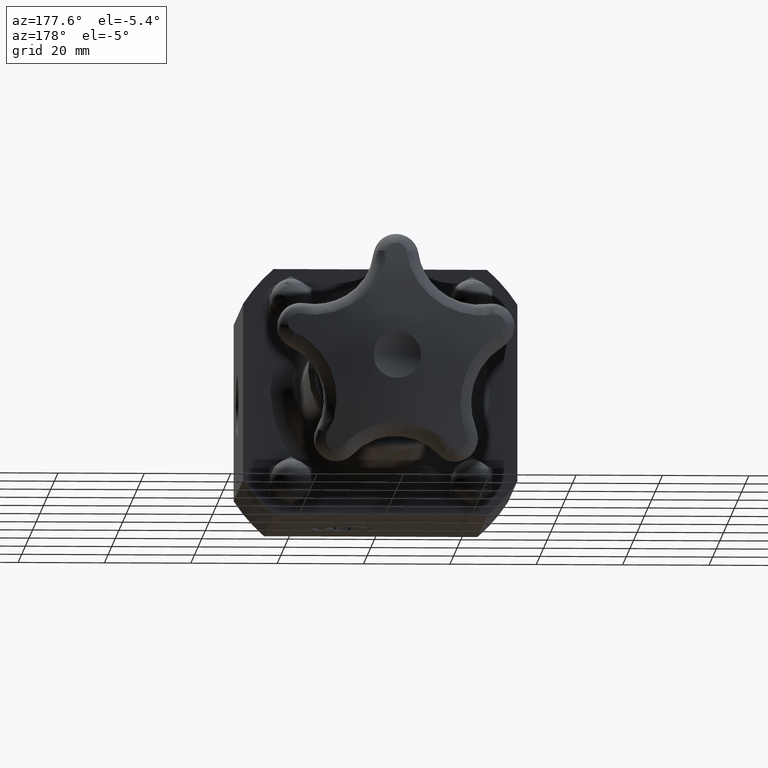
[diagram: clean part render]
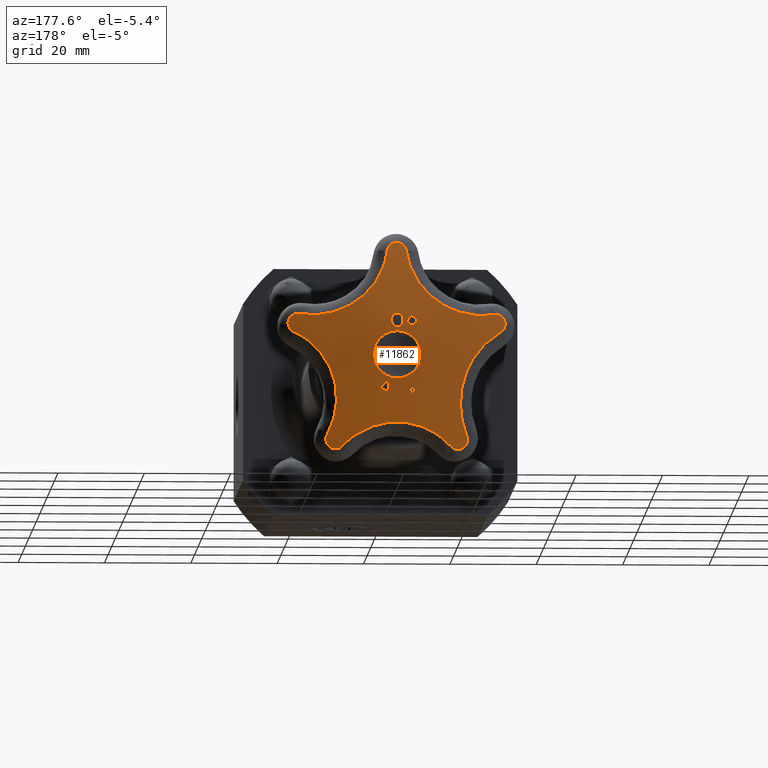
[diagram: same view with one face highlighted and labeled with its STEP entity id]
A machine part, auxiliary view. The second image highlights one B-rep face of the part: STEP entity #11862.
In plain terms, the highlighted spherical surface has radius 101.6 mm.
Its self-contained STEP definition (entity closure, byte-faithful):
#8673=CARTESIAN_POINT('',(0.085862900185211,5.742578033837450,-0.334336098257462));
#8674=VERTEX_POINT('',#8673);
#8681=CARTESIAN_POINT('',(0.080862571524474,5.740070388788942,-0.364135061299996));
#8682=VERTEX_POINT('',#8681);
#8683=CARTESIAN_POINT('',(0.138077283113868,1.757500000000000,-0.023169658459773));
#8684=DIRECTION('',(0.986211736099962,-3.347682E-034,-0.165488403154721));
#8685=DIRECTION('',(0.165488403154721,1.995018E-033,0.986211736099962));
#8686=AXIS2_PLACEMENT_3D('',#8683,#8684,#8685);
#8687=CIRCLE('',#8686,3.997548977913186);
#8688=EDGE_CURVE('',#8682,#8674,#8687,.T.);
#8706=CARTESIAN_POINT('',(0.066931145986275,5.740560100352850,-0.361597094393902));
#8707=VERTEX_POINT('',#8706);
#8708=CARTESIAN_POINT('',(-0.061608234058828,1.757500000000000,-0.338180345563003));
#8709=DIRECTION('',(-0.179225881333302,0.0,-0.983807950496590));
#8710=DIRECTION('',(0.0,-1.0,0.0));
#8711=AXIS2_PLACEMENT_3D('',#8708,#8709,#8710);
#8712=CIRCLE('',#8711,3.985202438944732);
#8713=EDGE_CURVE('',#8707,#8682,#8712,.T.);
#8731=CARTESIAN_POINT('',(0.086359266902230,5.749345606544358,-0.240230577846813));
#8732=VERTEX_POINT('',#8731);
#8733=CARTESIAN_POINT('',(0.121696449326066,1.757500000000000,-0.019480935927100));
#8734=DIRECTION('',(-0.987428598717144,3.197527E-034,0.158065690254078));
#8735=DIRECTION('',(-0.158065690254078,-1.997479E-033,-0.987428598717144));
#8736=AXIS2_PLACEMENT_3D('',#8733,#8734,#8735);
#8737=CIRCLE('',#8736,3.998100857576862);
#8738=EDGE_CURVE('',#8732,#8707,#8737,.T.);
#8756=CARTESIAN_POINT('',(0.178491128782159,5.740560100243762,-0.321516958794137));
#8757=VERTEX_POINT('',#8756);
#8758=CARTESIAN_POINT('',(-0.081379549747352,1.757500000000000,-0.092237461550079));
#8759=DIRECTION('',(0.661592173204071,0.0,0.749863851879202));
#8760=DIRECTION('',(0.0,1.0,0.0));
#8761=AXIS2_PLACEMENT_3D('',#8758,#8759,#8760);
#8762=CIRCLE('',#8761,3.998108255108873);
#8763=EDGE_CURVE('',#8757,#8732,#8762,.T.);
#8799=CARTESIAN_POINT('',(0.169360113250167,5.740070388702393,-0.332340564889026));
#8800=VERTEX_POINT('',#8799);
#8801=CARTESIAN_POINT('',(0.262739148876333,1.757500000000000,-0.221652121134103));
#8802=DIRECTION('',(0.764340282334966,0.0,-0.644813099122609));
#8803=DIRECTION('',(0.0,-1.0,0.0));
#8804=AXIS2_PLACEMENT_3D('',#8801,#8802,#8803);
#8805=CIRCLE('',#8804,3.985202438627741);
#8806=EDGE_CURVE('',#8800,#8757,#8805,.T.);
#8824=CARTESIAN_POINT('',(0.146539084429404,5.742578033778149,-0.312536976105990));
#8825=VERTEX_POINT('',#8824);
#8826=CARTESIAN_POINT('',(-0.091762441742962,1.757500000000000,-0.105744133077216));
#8827=DIRECTION('',(-0.655409775395539,0.0,-0.755273477831686));
#8828=DIRECTION('',(0.0,-1.0,0.0));
#8829=AXIS2_PLACEMENT_3D('',#8826,#8827,#8828);
#8830=CIRCLE('',#8829,3.997548978137118);
#8831=EDGE_CURVE('',#8825,#8800,#8830,.T.);
#8849=CARTESIAN_POINT('',(0.116200988857743,1.757500000000000,-0.323436538421051));
#8850=DIRECTION('',(0.338111065893150,0.0,-0.941106214579735));
#8851=DIRECTION('',(0.0,-1.0,0.0));
#8852=AXIS2_PLACEMENT_3D('',#8849,#8850,#8851);
#8853=CIRCLE('',#8852,3.985208418113498);
#8854=EDGE_CURVE('',#8674,#8825,#8853,.T.);
#8884=CARTESIAN_POINT('',(0.037834369669133,5.748204436490727,0.269901206082853));
#8885=VERTEX_POINT('',#8884);
#8892=CARTESIAN_POINT('',(-0.000813251585510,5.749463335806678,0.253432563411026));
#8893=VERTEX_POINT('',#8892);
#8894=CARTESIAN_POINT('',(-0.000813251585510,5.749463335806678,0.253432563411025));
#8895=CARTESIAN_POINT('',(0.004822604549693,5.749463267161417,0.253451729844247));
#8896=CARTESIAN_POINT('',(0.010434056143418,5.749408968571550,0.254137147028971));
#8897=CARTESIAN_POINT('',(0.019829419967588,5.749191776701514,0.256945437338925));
#8898=CARTESIAN_POINT('',(0.023603879105451,5.749063271092424,0.258616838560289));
#8899=CARTESIAN_POINT('',(0.031162797321007,5.748707503911848,0.263275608997046));
#8900=CARTESIAN_POINT('',(0.034718544485056,5.748475224151670,0.266334166676061));
#8901=CARTESIAN_POINT('',(0.037834369669133,5.748204436490726,0.269901206082853));
#8902=B_SPLINE_CURVE_WITH_KNOTS('',3,(#8894,#8895,#8896,#8897,#8898,#8899,#8900,#8901),.UNSPECIFIED.,.F.,.U.,(4,2,2,4),(0.0,0.042945472093289,0.074729953679080,0.111130521126663),.UNSPECIFIED.);
#8903=EDGE_CURVE('',#8893,#8885,#8902,.T.);
#8936=CARTESIAN_POINT('',(0.051972176469609,5.744648590963244,0.316140801626154));
#8937=VERTEX_POINT('',#8936);
#8944=CARTESIAN_POINT('',(0.037834369669133,5.748204436490726,0.269901206082853));
#8945=CARTESIAN_POINT('',(0.041442739555291,5.747886429832899,0.274097371770597));
#8946=CARTESIAN_POINT('',(0.044216393332117,5.747526143654533,0.278867364485766));
#8947=CARTESIAN_POINT('',(0.051175872144373,5.746247534047898,0.295695352673443));
#8948=CARTESIAN_POINT('',(0.052000310715352,5.745304176149834,0.307867975918427));
#8949=CARTESIAN_POINT('',(0.051972176469609,5.744648590963244,0.316140801626154));
#8950=B_SPLINE_CURVE_WITH_KNOTS('',3,(#8944,#8945,#8946,#8947,#8948,#8949),.UNSPECIFIED.,.F.,.U.,(4,2,4),(0.0,0.042240697270331,0.139117363804144),.UNSPECIFIED.);
#8951=EDGE_CURVE('',#8885,#8937,#8950,.T.);
#8977=CARTESIAN_POINT('',(0.037422621985947,5.740875481075145,0.362380082417699));
#8978=VERTEX_POINT('',#8977);
#8985=CARTESIAN_POINT('',(0.051972176469609,5.744648590963244,0.316140801626154));
#8986=CARTESIAN_POINT('',(0.051955724861657,5.744265235014527,0.320978368143261));
#8987=CARTESIAN_POINT('',(0.051649887753166,5.743873160763518,0.325860197870603));
#8988=CARTESIAN_POINT('',(0.050134657362983,5.743046460787355,0.336059631335726));
#8989=CARTESIAN_POINT('',(0.048942330808374,5.742679768741240,0.340537076610657));
#8990=CARTESIAN_POINT('',(0.045132529339031,5.741814489793273,0.351068251626343));
#8991=CARTESIAN_POINT('',(0.041865078415884,5.741314249290123,0.357098260899483));
#8992=CARTESIAN_POINT('',(0.037422621985947,5.740875481075144,0.362380082417699));
#8993=B_SPLINE_CURVE_WITH_KNOTS('',3,(#8985,#8986,#8987,#8988,#8989,#8990,#8991,#8992),.UNSPECIFIED.,.F.,.U.,(4,2,2,4),(0.0,0.036978033263811,0.078812994269673,0.145814753845857),.UNSPECIFIED.);
#8994=EDGE_CURVE('',#8937,#8978,#8993,.T.);
#9022=CARTESIAN_POINT('',(-0.001238542349022,5.739552846207736,0.378488567887762));
#9023=VERTEX_POINT('',#9022);
#9030=CARTESIAN_POINT('',(0.037422621985947,5.740875481075145,0.362380082417699));
#9031=CARTESIAN_POINT('',(0.034954443929450,5.740644692501276,0.365171856276013));
#9032=CARTESIAN_POINT('',(0.032197988751061,5.740440415363389,0.367645041378231));
#9033=CARTESIAN_POINT('',(0.025433171661516,5.740054380883790,0.372335971569167));
#9034=CARTESIAN_POINT('',(0.021382576080450,5.739892027163673,0.374321631798851));
#9035=CARTESIAN_POINT('',(0.014161922593872,5.739697132621298,0.376716303028090));
#9036=CARTESIAN_POINT('',(0.011126297743766,5.739640822220748,0.377412789087582));
#9037=CARTESIAN_POINT('',(0.004967186895549,5.739568654773591,0.378304358121797));
#9038=CARTESIAN_POINT('',(0.001864839243269,5.739552808314178,0.378499121875412));
#9039=CARTESIAN_POINT('',(-0.001238542349022,5.739552846207735,0.378488567887762));
#9040=B_SPLINE_CURVE_WITH_KNOTS('',3,(#9030,#9031,#9032,#9033,#9034,#9035,#9036,#9037,#9038,#9039),.UNSPECIFIED.,.F.,.U.,(4,2,2,2,4),(0.0,0.028449418287417,0.062797366334246,0.086669104210055,0.110412733579470),.UNSPECIFIED.);
#9041=EDGE_CURVE('',#8978,#9023,#9040,.T.);
#9227=CARTESIAN_POINT('',(-0.039886494311880,5.740875481072099,0.362117169387378));
#9228=VERTEX_POINT('',#9227);
#9235=CARTESIAN_POINT('',(-0.001238542349022,5.739552846207735,0.378488567887762));
#9236=CARTESIAN_POINT('',(-0.006745334190295,5.739552913447912,0.378469840376704));
#9237=CARTESIAN_POINT('',(-0.012222719771290,5.739603190919957,0.377803010782853));
#9238=CARTESIAN_POINT('',(-0.022169110236763,5.739836259202796,0.374873454632416));
#9239=CARTESIAN_POINT('',(-0.025880772573738,5.739983982792516,0.373045650941543));
#9240=CARTESIAN_POINT('',(-0.032976239086434,5.740326456239561,0.368822005397033));
#9241=CARTESIAN_POINT('',(-0.036677483482774,5.740576120274294,0.365763676003978));
#9242=CARTESIAN_POINT('',(-0.039886494311880,5.740875481072099,0.362117169387378));
#9243=B_SPLINE_CURVE_WITH_KNOTS('',3,(#9235,#9236,#9237,#9238,#9239,#9240,#9241,#9242),.UNSPECIFIED.,.F.,.U.,(4,2,2,4),(0.0,0.041961996486355,0.079020325656231,0.132098515306939),.UNSPECIFIED.);
#9244=EDGE_CURVE('',#9023,#9228,#9243,.T.);
#9270=CARTESIAN_POINT('',(-0.054121214575585,5.744648590959069,0.315779998964419));
#9271=VERTEX_POINT('',#9270);
#9278=CARTESIAN_POINT('',(-0.039886494311880,5.740875481072100,0.362117169387378));
#9279=CARTESIAN_POINT('',(-0.043384531614640,5.741215540252461,0.357991135129826));
#9280=CARTESIAN_POINT('',(-0.046110522559888,5.741601304155912,0.353327026506887));
#9281=CARTESIAN_POINT('',(-0.049655140330850,5.742287322165351,0.344989572698873));
#9282=CARTESIAN_POINT('',(-0.051408401706369,5.742680648419753,0.340203251638015));
#9283=CARTESIAN_POINT('',(-0.053714336300565,5.743694761028935,0.327721858865083));
#9284=CARTESIAN_POINT('',(-0.054141415064118,5.744177878462816,0.321719917253611));
#9285=CARTESIAN_POINT('',(-0.054121214575585,5.744648590959070,0.315779998964419));
#9286=B_SPLINE_CURVE_WITH_KNOTS('',3,(#9278,#9279,#9280,#9281,#9282,#9283,#9284,#9285),.UNSPECIFIED.,.F.,.U.,(4,2,2,4),(0.0,0.041300163745689,0.069239721804254,0.093823977580811),.UNSPECIFIED.);
#9287=EDGE_CURVE('',#9228,#9271,#9286,.T.);
#9313=CARTESIAN_POINT('',(-0.039571990800138,5.748205379604829,0.269637962344318));
#9314=VERTEX_POINT('',#9313);
#9321=CARTESIAN_POINT('',(-0.054121214575585,5.744648590959070,0.315779998964419));
#9322=CARTESIAN_POINT('',(-0.054104973183963,5.745027048439478,0.311004246190809));
#9323=CARTESIAN_POINT('',(-0.053791585087129,5.745402200783877,0.306211457940532));
#9324=CARTESIAN_POINT('',(-0.052375519715095,5.746143410979320,0.296655576028873));
#9325=CARTESIAN_POINT('',(-0.051258684496629,5.746507467278867,0.291916990166383));
#9326=CARTESIAN_POINT('',(-0.047377403862622,5.747352193214818,0.280860112488070));
#9327=CARTESIAN_POINT('',(-0.044132654634130,5.747811607413357,0.274796561836271));
#9328=CARTESIAN_POINT('',(-0.039571990800138,5.748205379604828,0.269637962344318));
#9329=B_SPLINE_CURVE_WITH_KNOTS('',3,(#9321,#9322,#9323,#9324,#9325,#9326,#9327,#9328),.UNSPECIFIED.,.F.,.U.,(4,2,2,4),(0.0,0.036505533163791,0.073822024429602,0.126837533468264),.UNSPECIFIED.);
#9330=EDGE_CURVE('',#9271,#9314,#9329,.T.);
#9357=CARTESIAN_POINT('',(-0.039571990800138,5.748205379604828,0.269637962344318));
#9358=CARTESIAN_POINT('',(-0.036994618978134,5.748426649193219,0.266741374653485));
#9359=CARTESIAN_POINT('',(-0.034125944551200,5.748624226597592,0.264155087526020));
#9360=CARTESIAN_POINT('',(-0.028127958870894,5.748941902899274,0.260022999604724));
#9361=CARTESIAN_POINT('',(-0.024119800176987,5.749119835051820,0.257727462092390));
#9362=CARTESIAN_POINT('',(-0.015614631027444,5.749330482346446,0.255058899401250));
#9363=CARTESIAN_POINT('',(-0.012615830697533,5.749382732516450,0.254406267976288));
#9364=CARTESIAN_POINT('',(-0.006666959610789,5.749448427235688,0.253597873925736));
#9365=CARTESIAN_POINT('',(-0.003741704705224,5.749463371475511,0.253422604320576));
#9366=CARTESIAN_POINT('',(-0.000813251586146,5.749463335806677,0.253432563411023));
#9367=B_SPLINE_CURVE_WITH_KNOTS('',3,(#9357,#9358,#9359,#9360,#9361,#9362,#9363,#9364,#9365,#9366),.UNSPECIFIED.,.F.,.U.,(4,2,2,2,4),(0.0,0.029592715149351,0.055552496815722,0.069221283901438,0.082236559754027),.UNSPECIFIED.);
#9368=EDGE_CURVE('',#9314,#8893,#9367,.T.);
#9642=CARTESIAN_POINT('',(-0.247118300170065,5.744930202010449,-0.198325313099391));
#9643=VERTEX_POINT('',#9642);
#9650=CARTESIAN_POINT('',(-0.207827658530653,5.745059962457522,-0.237008882018031));
#9651=VERTEX_POINT('',#9650);
#9652=CARTESIAN_POINT('',(-0.220785948703935,1.757500000000000,-0.224250808083116));
#9653=DIRECTION('',(0.701580297701931,0.0,0.712590405405847));
#9654=DIRECTION('',(0.0,1.0,0.0));
#9655=AXIS2_PLACEMENT_3D('',#9652,#9653,#9654);
#9656=CIRCLE('',#9655,3.987601426914302);
#9657=EDGE_CURVE('',#9651,#9643,#9656,.T.);
#9675=CARTESIAN_POINT('',(-0.176580613442933,5.748324840990899,-0.205271467783727));
#9676=VERTEX_POINT('',#9675);
#9677=CARTESIAN_POINT('',(0.012958290173282,1.757500000000000,-0.012758073934915));
#9678=DIRECTION('',(-0.712590405405847,0.0,0.701580297701931));
#9679=DIRECTION('',(0.0,1.0,0.0));
#9680=AXIS2_PLACEMENT_3D('',#9677,#9678,#9679);
#9681=CIRCLE('',#9680,3.999958664069575);
#9682=EDGE_CURVE('',#9676,#9651,#9681,.T.);
#9700=CARTESIAN_POINT('',(-0.218712377317294,5.748156275729468,-0.163790674304833));
#9701=VERTEX_POINT('',#9700);
#9702=CARTESIAN_POINT('',(-0.189538903616215,1.757500000000000,-0.192513393848812));
#9703=DIRECTION('',(-0.701580297701931,0.0,-0.712590405405848));
#9704=DIRECTION('',(0.0,-1.0,0.0));
#9705=AXIS2_PLACEMENT_3D('',#9702,#9703,#9704);
#9706=CIRCLE('',#9705,3.990866271526118);
#9707=EDGE_CURVE('',#9701,#9676,#9706,.T.);
#9725=CARTESIAN_POINT('',(-0.208751528883217,5.749092069880930,-0.153673507321845));
#9726=VERTEX_POINT('',#9725);
#9727=CARTESIAN_POINT('',(-0.029173473701079,1.757500000000000,0.028722719543979));
#9728=DIRECTION('',(-0.712590405405848,0.0,0.701580297701931));
#9729=DIRECTION('',(0.0,1.0,0.0));
#9730=AXIS2_PLACEMENT_3D('',#9727,#9728,#9729);
#9731=CIRCLE('',#9730,3.999790483739644);
#9732=EDGE_CURVE('',#9726,#9701,#9731,.T.);
#9750=CARTESIAN_POINT('',(-0.155255276069062,5.749156082813490,-0.206343199041756));
#9751=VERTEX_POINT('',#9750);
#9752=CARTESIAN_POINT('',(-0.179578055182139,1.757500000000000,-0.182396226865824));
#9753=DIRECTION('',(0.701580297701931,0.0,0.712590405405847));
#9754=DIRECTION('',(0.0,1.0,0.0));
#9755=AXIS2_PLACEMENT_3D('',#9752,#9753,#9754);
#9756=CIRCLE('',#9755,3.991802016448476);
#9757=EDGE_CURVE('',#9751,#9726,#9756,.T.);
#9775=CARTESIAN_POINT('',(-0.239444912833791,5.739646073155508,-0.291854048747284));
#9776=VERTEX_POINT('',#9775);
#9777=CARTESIAN_POINT('',(0.024322779113076,1.757500000000000,-0.023946972175932));
#9778=DIRECTION('',(0.712590405405848,0.0,-0.701580297701931));
#9779=DIRECTION('',(0.0,-1.0,0.0));
#9780=AXIS2_PLACEMENT_3D('',#9777,#9778,#9779);
#9781=CIRCLE('',#9780,3.999854365466301);
#9782=EDGE_CURVE('',#9776,#9751,#9781,.T.);
#9800=CARTESIAN_POINT('',(-0.292941165647946,5.739581907347239,-0.239184357027372));
#9801=VERTEX_POINT('',#9800);
#9802=CARTESIAN_POINT('',(-0.263767691946868,1.757500000000000,-0.267907076571351));
#9803=DIRECTION('',(-0.701580297701931,0.0,-0.712590405405847));
#9804=DIRECTION('',(0.0,-1.0,0.0));
#9805=AXIS2_PLACEMENT_3D('',#9802,#9803,#9804);
#9806=CIRCLE('',#9805,3.982292355290859);
#9807=EDGE_CURVE('',#9801,#9776,#9806,.T.);
#9825=CARTESIAN_POINT('',(-0.282980317213870,5.740896837187416,-0.229067190044385));
#9826=VERTEX_POINT('',#9825);
#9827=CARTESIAN_POINT('',(-0.029173473701079,1.757500000000000,0.028722719543979));
#9828=DIRECTION('',(-0.712590405405848,0.0,0.701580297701931));
#9829=DIRECTION('',(0.0,1.0,0.0));
#9830=AXIS2_PLACEMENT_3D('',#9827,#9828,#9829);
#9831=CIRCLE('',#9830,3.999790483739644);
#9832=EDGE_CURVE('',#9826,#9801,#9831,.T.);
#9850=CARTESIAN_POINT('',(-0.240848553339509,5.741065709633237,-0.270547983523278));
#9851=VERTEX_POINT('',#9850);
#9852=CARTESIAN_POINT('',(-0.253806843512791,1.757500000000000,-0.257789909588363));
#9853=DIRECTION('',(0.701580297701931,0.0,0.712590405405847));
#9854=DIRECTION('',(0.0,1.0,0.0));
#9855=AXIS2_PLACEMENT_3D('',#9852,#9853,#9854);
#9856=CIRCLE('',#9855,3.983607215665281);
#9857=EDGE_CURVE('',#9851,#9826,#9856,.T.);
#9875=CARTESIAN_POINT('',(-0.217788506964729,5.743914037971875,-0.247126049001019));
#9876=VERTEX_POINT('',#9875);
#9877=CARTESIAN_POINT('',(0.012958290173281,1.757500000000000,-0.012758073934914));
#9878=DIRECTION('',(-0.712590405405848,0.0,0.701580297701930));
#9879=DIRECTION('',(0.0,1.0,0.0));
#9880=AXIS2_PLACEMENT_3D('',#9877,#9878,#9879);
#9881=CIRCLE('',#9880,3.999958664069575);
#9882=EDGE_CURVE('',#9876,#9851,#9881,.T.);
#9900=CARTESIAN_POINT('',(-0.257079148604141,5.743784240222976,-0.208442480082379));
#9901=VERTEX_POINT('',#9900);
#9902=CARTESIAN_POINT('',(-0.230746797138011,1.757500000000000,-0.234367975066104));
#9903=DIRECTION('',(-0.701580297701931,0.0,-0.712590405405848));
#9904=DIRECTION('',(0.0,-1.0,0.0));
#9905=AXIS2_PLACEMENT_3D('',#9902,#9903,#9904);
#9906=CIRCLE('',#9905,3.986455514347798);
#9907=EDGE_CURVE('',#9901,#9876,#9906,.T.);
#9925=CARTESIAN_POINT('',(-0.026332351466130,1.757500000000000,0.025925494983725));
#9926=DIRECTION('',(-0.712590405405848,0.0,0.701580297701931));
#9927=DIRECTION('',(0.0,1.0,0.0));
#9928=AXIS2_PLACEMENT_3D('',#9925,#9926,#9927);
#9929=CIRCLE('',#9928,3.999829305854953);
#9930=EDGE_CURVE('',#9643,#9901,#9929,.T.);
#9952=CARTESIAN_POINT('',(0.104679989358764,5.739501420719624,0.364289425065761));
#9953=VERTEX_POINT('',#9952);
#9960=CARTESIAN_POINT('',(0.193260657033255,5.739499064924952,0.326088585172621));
#9961=VERTEX_POINT('',#9960);
#9962=CARTESIAN_POINT('',(0.148881029224559,1.757500000000000,0.345227513574776));
#9963=DIRECTION('',(0.395999965100261,0.0,0.918250525532435));
#9964=DIRECTION('',(0.0,1.0,0.0));
#9965=AXIS2_PLACEMENT_3D('',#9962,#9963,#9964);
#9966=CIRCLE('',#9965,3.982292355290859);
#9967=EDGE_CURVE('',#9961,#9953,#9966,.T.);
#9992=CARTESIAN_POINT('',(0.099057688326104,5.740816377129186,0.351252350992701));
#9993=VERTEX_POINT('',#9992);
#10000=CARTESIAN_POINT('',(-0.044201039865794,1.757500000000000,0.019061911490986));
#10001=DIRECTION('',(-0.918250525532435,8.010724E-034,0.395999965100260));
#10002=DIRECTION('',(-0.395999965100260,-1.857538E-033,-0.918250525532435));
#10003=AXIS2_PLACEMENT_3D('',#10000,#10001,#10002);
#10004=CIRCLE('',#10003,3.999710353463748);
#10005=EDGE_CURVE('',#9953,#9993,#10004,.T.);
#10025=CARTESIAN_POINT('',(0.136025829875741,5.741099428197435,0.335309661763105));
#10026=VERTEX_POINT('',#10025);
#10033=CARTESIAN_POINT('',(0.143258728191899,1.757500000000000,0.332190439501716));
#10034=DIRECTION('',(-0.395999965100261,0.0,-0.918250525532434));
#10035=DIRECTION('',(0.0,-1.0,0.0));
#10036=AXIS2_PLACEMENT_3D('',#10033,#10034,#10035);
#10037=CIRCLE('',#10036,3.983607215665281);
#10038=EDGE_CURVE('',#9993,#10026,#10037,.T.);
#10058=CARTESIAN_POINT('',(0.094128134509071,5.749294244967611,0.238156671410437));
#10059=VERTEX_POINT('',#10058);
#10066=CARTESIAN_POINT('',(-0.007232898316159,1.757500000000000,0.003119222261389));
#10067=DIRECTION('',(-0.918250525532435,8.010724E-034,0.395999965100261));
#10068=DIRECTION('',(-0.395999965100261,-1.857538E-033,-0.918250525532435));
#10069=AXIS2_PLACEMENT_3D('',#10066,#10067,#10068);
#10070=CIRCLE('',#10069,3.999992244446786);
#10071=EDGE_CURVE('',#10026,#10059,#10070,.T.);
#10091=CARTESIAN_POINT('',(0.108772519084289,5.749293856457106,0.231841209976490));
#10092=VERTEX_POINT('',#10091);
#10099=CARTESIAN_POINT('',(0.101361032825229,1.757500000000000,0.235037449149049));
#10100=DIRECTION('',(-0.395999965100260,0.0,-0.918250525532435));
#10101=DIRECTION('',(0.0,-1.0,0.0));
#10102=AXIS2_PLACEMENT_3D('',#10099,#10100,#10101);
#10103=CIRCLE('',#10102,3.991802016448476);
#10104=EDGE_CURVE('',#10059,#10092,#10103,.T.);
#10124=CARTESIAN_POINT('',(0.150670214450959,5.741099038887709,0.328994200329158));
#10125=VERTEX_POINT('',#10124);
#10132=CARTESIAN_POINT('',(0.007411486259060,1.757500000000000,-0.003196239172557));
#10133=DIRECTION('',(0.918250525532434,-8.010724E-034,-0.395999965100261));
#10134=DIRECTION('',(0.395999965100261,1.857538E-033,0.918250525532434));
#10135=AXIS2_PLACEMENT_3D('',#10132,#10133,#10134);
#10136=CIRCLE('',#10135,3.999991856732535);
#10137=EDGE_CURVE('',#10092,#10125,#10136,.T.);
#10157=CARTESIAN_POINT('',(0.187638356000595,5.740814022112200,0.313051511099561));
#10158=VERTEX_POINT('',#10157);
#10165=CARTESIAN_POINT('',(0.143258728191899,1.757500000000000,0.332190439501716));
#10166=DIRECTION('',(-0.395999965100261,0.0,-0.918250525532435));
#10167=DIRECTION('',(0.0,-1.0,0.0));
#10168=AXIS2_PLACEMENT_3D('',#10165,#10166,#10167);
#10169=CIRCLE('',#10168,3.983607215665281);
#10170=EDGE_CURVE('',#10125,#10158,#10169,.T.);
#10189=CARTESIAN_POINT('',(0.044379627808697,1.757500000000000,-0.019138928402154));
#10190=DIRECTION('',(0.918250525532435,-8.010724E-034,-0.395999965100259));
#10191=DIRECTION('',(0.395999965100259,1.857538E-033,0.918250525532435));
#10192=AXIS2_PLACEMENT_3D('',#10189,#10190,#10191);
#10193=CIRCLE('',#10192,3.999708008099489);
#10194=EDGE_CURVE('',#10158,#9961,#10193,.T.);
#10293=CARTESIAN_POINT('',(-0.132776476717596,5.749152316888536,-0.221545002897484));
#10294=VERTEX_POINT('',#10293);
#10301=CARTESIAN_POINT('',(-0.141106922486270,5.741658741024818,-0.326447488490869));
#10302=VERTEX_POINT('',#10301);
#10303=CARTESIAN_POINT('',(-0.114461481346885,1.757500000000000,0.009089538322841));
#10304=DIRECTION('',(0.996861755361221,-1.601379E-034,-0.079162116559279));
#10305=DIRECTION('',(0.079162116559279,2.016562E-033,0.996861755361221));
#10306=AXIS2_PLACEMENT_3D('',#10303,#10304,#10305);
#10307=CIRCLE('',#10306,3.998351654067081);
#10308=EDGE_CURVE('',#10302,#10294,#10307,.T.);
#10326=CARTESIAN_POINT('',(-0.071391562909479,5.749171847508763,-0.247909472492113));
#10327=VERTEX_POINT('',#10326);
#10328=CARTESIAN_POINT('',(0.083150511259561,1.757500000000000,-0.073809704991097));
#10329=DIRECTION('',(-0.747864056465855,0.0,0.663851905959784));
#10330=DIRECTION('',(0.0,1.0,0.0));
#10331=AXIS2_PLACEMENT_3D('',#10328,#10329,#10330);
#10332=CIRCLE('',#10331,3.998454466406539);
#10333=EDGE_CURVE('',#10327,#10302,#10332,.T.);
#10351=CARTESIAN_POINT('',(-0.055754940032594,5.748998131883169,-0.254625312636306));
#10352=VERTEX_POINT('',#10351);
#10353=CARTESIAN_POINT('',(-0.101011795140334,1.757500000000000,-0.235187752062932));
#10354=DIRECTION('',(0.394635554071923,0.0,0.918837732933485));
#10355=DIRECTION('',(0.0,1.0,0.0));
#10356=AXIS2_PLACEMENT_3D('',#10353,#10354,#10355);
#10357=CIRCLE('',#10356,3.991802016448476);
#10358=EDGE_CURVE('',#10352,#10327,#10357,.T.);
#10376=CARTESIAN_POINT('',(-0.140907158403200,5.739784076964297,-0.348652696916783));
#10377=VERTEX_POINT('',#10376);
#10378=CARTESIAN_POINT('',(0.096057099062329,1.757500000000000,-0.086990350077203));
#10379=DIRECTION('',(0.741222642945153,0.0,-0.671259259590065));
#10380=DIRECTION('',(0.0,-1.0,0.0));
#10381=AXIS2_PLACEMENT_3D('',#10378,#10379,#10380);
#10382=CIRCLE('',#10381,3.997900162924680);
#10383=EDGE_CURVE('',#10377,#10352,#10382,.T.);
#10401=CARTESIAN_POINT('',(-0.156722485541535,5.739781975401070,-0.341860104313799));
#10402=VERTEX_POINT('',#10401);
#10403=CARTESIAN_POINT('',(-0.148368062214239,1.757500000000000,-0.345448281377657));
#10404=DIRECTION('',(-0.394635554071924,0.0,-0.918837732933484));
#10405=DIRECTION('',(0.0,-1.0,0.0));
#10406=AXIS2_PLACEMENT_3D('',#10403,#10404,#10405);
#10407=CIRCLE('',#10406,3.982292355290859);
#10408=EDGE_CURVE('',#10402,#10377,#10407,.T.);
#10426=CARTESIAN_POINT('',(-0.147698282548681,5.748978628851239,-0.215136172588454));
#10427=VERTEX_POINT('',#10426);
#10428=CARTESIAN_POINT('',(-0.131710197155650,1.757500000000000,0.009379282501569));
#10429=DIRECTION('',(-0.997474063033574,1.436906E-034,0.071031637847470));
#10430=DIRECTION('',(-0.071031637847470,-2.017800E-033,-0.997474063033574));
#10431=AXIS2_PLACEMENT_3D('',#10428,#10429,#10430);
#10432=CIRCLE('',#10431,3.997819962557716);
#10433=EDGE_CURVE('',#10427,#10402,#10432,.T.);
#10451=CARTESIAN_POINT('',(-0.101011795140334,1.757500000000000,-0.235187752062933));
#10452=DIRECTION('',(0.394635554071923,0.0,0.918837732933485));
#10453=DIRECTION('',(0.0,1.0,0.0));
#10454=AXIS2_PLACEMENT_3D('',#10451,#10452,#10453);
#10455=CIRCLE('',#10454,3.991802016448476);
#10456=EDGE_CURVE('',#10294,#10427,#10455,.T.);
#10478=CARTESIAN_POINT('',(-0.069865805707577,5.749162659387478,0.248491414025747));
#10479=VERTEX_POINT('',#10478);
#10486=CARTESIAN_POINT('',(-0.084532147717997,5.749264063873195,0.242227113207306));
#10487=VERTEX_POINT('',#10486);
#10488=CARTESIAN_POINT('',(-0.100539922146019,1.757500000000000,0.235389858602194));
#10489=DIRECTION('',(0.392792028171763,0.0,-0.919627328108899));
#10490=DIRECTION('',(0.0,-1.0,0.0));
#10491=AXIS2_PLACEMENT_3D('',#10488,#10489,#10490);
#10492=CIRCLE('',#10491,3.991802016448476);
#10493=EDGE_CURVE('',#10487,#10479,#10492,.T.);
#10518=CARTESIAN_POINT('',(-0.117000849670729,5.739652665435394,0.358846694762693));
#10519=VERTEX_POINT('',#10518);
#10526=CARTESIAN_POINT('',(0.030674116438442,1.757500000000000,0.013101555423553));
#10527=DIRECTION('',(0.919627328108900,7.945830E-034,0.392792028171762));
#10528=DIRECTION('',(-0.392792028171762,1.860324E-033,0.919627328108900));
#10529=AXIS2_PLACEMENT_3D('',#10526,#10527,#10528);
#10530=CIRCLE('',#10529,3.999860928560668);
#10531=EDGE_CURVE('',#10479,#10519,#10530,.T.);
#10551=CARTESIAN_POINT('',(-0.144723813227012,5.739791062296547,0.347005638337590));
#10552=VERTEX_POINT('',#10551);
#10559=CARTESIAN_POINT('',(-0.147674966109171,1.757500000000000,0.345745139339140));
#10560=DIRECTION('',(-0.392792028171761,0.0,0.919627328108900));
#10561=DIRECTION('',(0.0,1.0,0.0));
#10562=AXIS2_PLACEMENT_3D('',#10559,#10560,#10561);
#10563=CIRCLE('',#10562,3.982292355290859);
#10564=EDGE_CURVE('',#10519,#10552,#10563,.T.);
#10590=CARTESIAN_POINT('',(-0.170668187046194,5.740392332671244,0.327781995050035));
#10591=VERTEX_POINT('',#10590);
#10598=CARTESIAN_POINT('',(-0.144723813227012,5.739791062296547,0.347005638337590));
#10599=CARTESIAN_POINT('',(-0.150088261328737,5.739795762969326,0.344714370575645));
#10600=CARTESIAN_POINT('',(-0.155816045050092,5.739823287565297,0.341843284165149));
#10601=CARTESIAN_POINT('',(-0.163386369744122,5.739985173854675,0.336346581494137));
#10602=CARTESIAN_POINT('',(-0.167427829443181,5.740105667536206,0.332952450875757));
#10603=CARTESIAN_POINT('',(-0.170668187046194,5.740392332671243,0.327781995050035));
#10604=B_SPLINE_CURVE_WITH_KNOTS('',3,(#10598,#10599,#10600,#10601,#10602,#10603),.UNSPECIFIED.,.F.,.U.,(4,2,4),(0.0,0.044449644500484,0.071079555324561),.UNSPECIFIED.);
#10605=EDGE_CURVE('',#10552,#10591,#10604,.T.);
#10777=CARTESIAN_POINT('',(-0.172546135424801,5.742815390487377,0.295785512651346));
#10778=VERTEX_POINT('',#10777);
#10785=CARTESIAN_POINT('',(-0.170668187046194,5.740392332671244,0.327781995050035));
#10786=CARTESIAN_POINT('',(-0.172986087574699,5.740591167831977,0.324159065981219));
#10787=CARTESIAN_POINT('',(-0.174567491806914,5.740838750576292,0.320245416315975));
#10788=CARTESIAN_POINT('',(-0.176129629330600,5.741442814318249,0.311764074180629));
#10789=CARTESIAN_POINT('',(-0.175887094211243,5.741718772794618,0.308335133779387));
#10790=CARTESIAN_POINT('',(-0.175001277294207,5.742211349698701,0.302427671544136));
#10791=CARTESIAN_POINT('',(-0.173928522803411,5.742515328212926,0.299022037632058));
#10792=CARTESIAN_POINT('',(-0.172546135424801,5.742815390487376,0.295785512651346));
#10793=B_SPLINE_CURVE_WITH_KNOTS('',3,(#10785,#10786,#10787,#10788,#10789,#10790,#10791,#10792),.UNSPECIFIED.,.F.,.U.,(4,2,2,4),(0.0,0.032808337471925,0.065876100718766,0.113361042324126),.UNSPECIFIED.);
#10794=EDGE_CURVE('',#10591,#10778,#10793,.T.);
#10822=CARTESIAN_POINT('',(-0.152421846635908,5.745095568897900,0.275407261294861));
#10823=VERTEX_POINT('',#10822);
#10830=CARTESIAN_POINT('',(-0.172546135424801,5.742815390487376,0.295785512651346));
#10831=CARTESIAN_POINT('',(-0.171321928932305,5.743081117873359,0.292919329875215));
#10832=CARTESIAN_POINT('',(-0.169804261392693,5.743343863950837,0.290215418914447));
#10833=CARTESIAN_POINT('',(-0.165910493783782,5.743891779064993,0.284897251377497));
#10834=CARTESIAN_POINT('',(-0.163657217073227,5.744148699667299,0.282590003201546));
#10835=CARTESIAN_POINT('',(-0.158684575838191,5.744639217410809,0.278482510744070));
#10836=CARTESIAN_POINT('',(-0.155702157987997,5.744881831002917,0.276686491070645));
#10837=CARTESIAN_POINT('',(-0.152421846635908,5.745095568897900,0.275407261294861));
#10838=B_SPLINE_CURVE_WITH_KNOTS('',3,(#10830,#10831,#10832,#10833,#10834,#10835,#10836,#10837),.UNSPECIFIED.,.F.,.U.,(4,2,2,4),(0.0,0.023835253161564,0.050398261842090,0.082258015573386),.UNSPECIFIED.);
#10839=EDGE_CURVE('',#10778,#10823,#10838,.T.);
#10867=CARTESIAN_POINT('',(-0.114533366717580,5.746179920008204,0.278055037055050));
#10868=VERTEX_POINT('',#10867);
#10875=CARTESIAN_POINT('',(-0.152421846635908,5.745095568897900,0.275407261294861));
#10876=CARTESIAN_POINT('',(-0.149545358874606,5.745283458798842,0.274278789378133));
#10877=CARTESIAN_POINT('',(-0.146578636591112,5.745448267506802,0.273482909697010));
#10878=CARTESIAN_POINT('',(-0.136733843929597,5.745902980470307,0.272015981091797));
#10879=CARTESIAN_POINT('',(-0.131190118846058,5.746021826509043,0.272931617342636));
#10880=CARTESIAN_POINT('',(-0.123610109338990,5.746155761130769,0.274533252414456));
#10881=CARTESIAN_POINT('',(-0.118915137061145,5.746184566599571,0.276183491476070));
#10882=CARTESIAN_POINT('',(-0.114533366717580,5.746179920008204,0.278055037055050));
#10883=B_SPLINE_CURVE_WITH_KNOTS('',3,(#10875,#10876,#10877,#10878,#10879,#10880,#10881,#10882),.UNSPECIFIED.,.F.,.U.,(4,2,2,4),(0.0,0.023588710723971,0.075924731072629,0.159708716541644),.UNSPECIFIED.);
#10884=EDGE_CURVE('',#10823,#10868,#10883,.T.);
#10904=CARTESIAN_POINT('',(-0.102102747574602,5.746143834417175,0.283364413968242));
#10905=VERTEX_POINT('',#10904);
#10912=CARTESIAN_POINT('',(-0.118110522002624,1.757500000000000,0.276527159363130));
#10913=DIRECTION('',(0.392792028171763,0.0,-0.919627328108899));
#10914=DIRECTION('',(0.0,-1.0,0.0));
#10915=AXIS2_PLACEMENT_3D('',#10912,#10913,#10914);
#10916=CIRCLE('',#10915,3.988681816681650);
#10917=EDGE_CURVE('',#10868,#10905,#10916,.T.);
#10936=CARTESIAN_POINT('',(0.016007774428021,1.757500000000000,0.006837254605112));
#10937=DIRECTION('',(-0.919627328108900,-7.945830E-034,-0.392792028171761));
#10938=DIRECTION('',(0.392792028171761,-1.860324E-033,-0.919627328108900));
#10939=AXIS2_PLACEMENT_3D('',#10936,#10937,#10938);
#10940=CIRCLE('',#10939,3.999962125209104);
#10941=EDGE_CURVE('',#10905,#10487,#10940,.T.);
#11172=CARTESIAN_POINT('',(-0.025446717491280,5.741118720077397,-0.360741399922220));
#11173=VERTEX_POINT('',#11172);
#11180=CARTESIAN_POINT('',(-0.015977407253327,5.749295876022474,-0.255559008112468));
#11181=VERTEX_POINT('',#11180);
#11182=CARTESIAN_POINT('',(0.006973418085276,1.757500000000000,-0.000627799559719));
#11183=DIRECTION('',(-0.995971991168664,1.813840E-034,0.089664891722048));
#11184=DIRECTION('',(-0.089664891722048,-2.014762E-033,-0.995971991168664));
#11185=AXIS2_PLACEMENT_3D('',#11182,#11183,#11184);
#11186=CIRCLE('',#11185,3.999993872158797);
#11187=EDGE_CURVE('',#11181,#11173,#11186,.T.);
#11205=CARTESIAN_POINT('',(-0.003483366237252,5.749254161384002,-0.256683815682170));
#11206=VERTEX_POINT('',#11205);
#11207=CARTESIAN_POINT('',(-0.022950825338604,1.757500000000000,-0.254931208552749));
#11208=DIRECTION('',(0.089664891722049,0.0,0.995971991168664));
#11209=DIRECTION('',(0.0,1.0,0.0));
#11210=AXIS2_PLACEMENT_3D('',#11207,#11208,#11209);
#11211=CIRCLE('',#11210,3.991802016448476);
#11212=EDGE_CURVE('',#11206,#11181,#11211,.T.);
#11230=CARTESIAN_POINT('',(-0.014077484044906,5.739918389468891,-0.374360248507997));
#11231=VERTEX_POINT('',#11230);
#11232=CARTESIAN_POINT('',(0.019467459101352,1.757500000000000,-0.001752607129421));
#11233=DIRECTION('',(0.995971991168664,-1.813840E-034,-0.089664891722048));
#11234=DIRECTION('',(0.089664891722048,2.014762E-033,0.995971991168664));
#11235=AXIS2_PLACEMENT_3D('',#11232,#11233,#11234);
#11236=CIRCLE('',#11235,3.999952243015458);
#11237=EDGE_CURVE('',#11231,#11206,#11236,.T.);
#11255=CARTESIAN_POINT('',(-0.053012402560118,5.739918389467351,-0.370855034221020));
#11256=VERTEX_POINT('',#11255);
#11257=CARTESIAN_POINT('',(-0.033544943146258,1.757500000000000,-0.372607641378576));
#11258=DIRECTION('',(-0.089664891722049,0.0,-0.995971991168664));
#11259=DIRECTION('',(0.0,-1.0,0.0));
#11260=AXIS2_PLACEMENT_3D('',#11257,#11258,#11259);
#11261=CIRCLE('',#11260,3.982466356716100);
#11262=EDGE_CURVE('',#11256,#11231,#11261,.T.);
#11280=CARTESIAN_POINT('',(-0.051887594990416,5.741076919809040,-0.358360993204945));
#11281=VERTEX_POINT('',#11280);
#11282=CARTESIAN_POINT('',(-0.019467459413860,1.757500000000000,0.001752607157556));
#11283=DIRECTION('',(-0.995971991168664,1.813840E-034,0.089664891722049));
#11284=DIRECTION('',(-0.089664891722049,-2.014762E-033,-0.995971991168664));
#11285=AXIS2_PLACEMENT_3D('',#11282,#11283,#11284);
#11286=CIRCLE('',#11285,3.999952243013925);
#11287=EDGE_CURVE('',#11281,#11256,#11286,.T.);
#11305=CARTESIAN_POINT('',(-0.032420135576556,1.757500000000000,-0.360113600362500));
#11306=DIRECTION('',(0.089664891722049,0.0,0.995971991168664));
#11307=DIRECTION('',(0.0,1.0,0.0));
#11308=AXIS2_PLACEMENT_3D('',#11305,#11306,#11307);
#11309=CIRCLE('',#11308,3.983624873107803);
#11310=EDGE_CURVE('',#11173,#11281,#11309,.T.);
#11332=CARTESIAN_POINT('',(0.158721080860086,5.748978628851239,-0.207137572435436));
#11333=VERTEX_POINT('',#11332);
#11340=CARTESIAN_POINT('',(0.169441733074488,5.749152316888536,-0.194939170438110));
#11341=VERTEX_POINT('',#11340);
#11342=CARTESIAN_POINT('',(0.192263240588120,1.757500000000000,-0.168971914223764));
#11343=DIRECTION('',(-0.751139115701745,0.0,0.660143945562481));
#11344=DIRECTION('',(0.0,1.0,0.0));
#11345=AXIS2_PLACEMENT_3D('',#11342,#11343,#11344);
#11346=CIRCLE('',#11345,3.991802016448476);
#11347=EDGE_CURVE('',#11341,#11333,#11346,.T.);
#11372=CARTESIAN_POINT('',(0.276397654900080,5.739781975401070,-0.255018832170283));
#11373=VERTEX_POINT('',#11372);
#11380=CARTESIAN_POINT('',(-0.049765265912093,1.757500000000000,-0.122306848883139));
#11381=DIRECTION('',(-0.376884729195410,0.0,-0.926260169120589));
#11382=DIRECTION('',(0.0,-1.0,0.0));
#11383=AXIS2_PLACEMENT_3D('',#11380,#11381,#11382);
#11384=CIRCLE('',#11383,3.997819962557716);
#11385=EDGE_CURVE('',#11333,#11373,#11384,.T.);
#11405=CARTESIAN_POINT('',(0.287760262336901,5.739784076964297,-0.242089986939584));
#11406=VERTEX_POINT('',#11405);
#11413=CARTESIAN_POINT('',(0.282399935586326,1.757500000000000,-0.248189188670305));
#11414=DIRECTION('',(0.751139115701747,0.0,-0.660143945562480));
#11415=DIRECTION('',(0.0,-1.0,0.0));
#11416=AXIS2_PLACEMENT_3D('',#11413,#11414,#11415);
#11417=CIRCLE('',#11416,3.982292355290859);
#11418=EDGE_CURVE('',#11373,#11406,#11417,.T.);
#11438=CARTESIAN_POINT('',(0.224778273247032,5.748998131883169,-0.131974963721373));
#11439=VERTEX_POINT('',#11438);
#11446=CARTESIAN_POINT('',(0.112492012560629,1.757500000000000,0.064341544874862));
#11447=DIRECTION('',(0.868042317271149,1.004355E-033,0.496490216848765));
#11448=DIRECTION('',(-0.496490216848765,1.755972E-033,0.868042317271149));
#11449=AXIS2_PLACEMENT_3D('',#11446,#11447,#11448);
#11450=CIRCLE('',#11449,3.997900162924679);
#11451=EDGE_CURVE('',#11406,#11439,#11450,.T.);
#11471=CARTESIAN_POINT('',(0.213544056854694,5.749171847508763,-0.144757720305397));
#11472=VERTEX_POINT('',#11471);
#11479=CARTESIAN_POINT('',(0.192263240588120,1.757500000000000,-0.168971914223764));
#11480=DIRECTION('',(-0.751139115701746,0.0,0.660143945562480));
#11481=DIRECTION('',(0.0,1.0,0.0));
#11482=AXIS2_PLACEMENT_3D('',#11479,#11480,#11481);
#11483=CIRCLE('',#11482,3.991802016448476);
#11484=EDGE_CURVE('',#11439,#11472,#11483,.T.);
#11504=CARTESIAN_POINT('',(0.266588010713152,5.741658741024818,-0.235393200538051));
#11505=VERTEX_POINT('',#11504);
#11512=CARTESIAN_POINT('',(0.095958453034011,1.757500000000000,0.056159196619243));
#11513=DIRECTION('',(-0.863059972225388,0.0,-0.505101459453755));
#11514=DIRECTION('',(0.0,-1.0,0.0));
#11515=AXIS2_PLACEMENT_3D('',#11512,#11513,#11514);
#11516=CIRCLE('',#11515,3.998454466406539);
#11517=EDGE_CURVE('',#11472,#11505,#11516,.T.);
#11536=CARTESIAN_POINT('',(-0.044140309788644,1.757500000000000,-0.105998506927259));
#11537=DIRECTION('',(0.384424403566333,0.0,0.923156475329437));
#11538=DIRECTION('',(0.0,1.0,0.0));
#11539=AXIS2_PLACEMENT_3D('',#11536,#11537,#11538);
#11540=CIRCLE('',#11539,3.998351654067081);
#11541=EDGE_CURVE('',#11505,#11341,#11540,.T.);
#11591=CARTESIAN_POINT('',(-1.219047E-016,1.757500000000000,5.245148E-016));
#11592=DIRECTION('',(0.0,0.0,1.0));
#11593=DIRECTION('',(1.0,0.0,0.0));
#11594=AXIS2_PLACEMENT_3D('',#11591,#11592,#11593);
#11595=SPHERICAL_SURFACE('',#11594,4.0);
#11596=CARTESIAN_POINT('',(0.634239059988198,5.639776509861762,-0.725030975725085));
#11597=VERTEX_POINT('',#11596);
#11598=CARTESIAN_POINT('',(0.939272693013338,5.639776509861743,0.213766014920972));
#11599=VERTEX_POINT('',#11598);
#11600=CARTESIAN_POINT('',(0.634239059988198,5.639776509861760,-0.725030975725085));
#11601=CARTESIAN_POINT('',(0.609404925107206,5.652252050247243,-0.679953289228775));
#11602=CARTESIAN_POINT('',(0.579299160972603,5.669191182312380,-0.606732557940747));
#11603=CARTESIAN_POINT('',(0.556969402328321,5.686640065432801,-0.503705249869330));
#11604=CARTESIAN_POINT('',(0.546623161221186,5.700479299461409,-0.398909241825124));
#11605=CARTESIAN_POINT('',(0.555097984581025,5.708705395733599,-0.291297106783356));
#11606=CARTESIAN_POINT('',(0.595435290578020,5.711726414719168,-0.137164801237273));
#11607=CARTESIAN_POINT('',(0.672596041100127,5.702291865320370,0.006612152510900));
#11608=CARTESIAN_POINT('',(0.803584470532237,5.674633561636137,0.136829623811746));
#11609=CARTESIAN_POINT('',(0.892685456524019,5.652252050247227,0.191894538714845));
#11610=CARTESIAN_POINT('',(0.939272693013337,5.639776509861743,0.213766014920972));
#11611=B_SPLINE_CURVE_WITH_KNOTS('',3,(#11600,#11601,#11602,#11603,#11604,#11605,#11606,#11607,#11608,#11609,#11610),.UNSPECIFIED.,.F.,.U.,(4,1,1,1,1,1,1,1,4),(0.0,0.391421298642903,0.587131947964354,0.782842597285806,1.174263895928709,1.369974545250160,1.957106493214515,2.348527791857418,2.739949090500320),.UNSPECIFIED.);
#11612=EDGE_CURVE('',#11597,#11599,#11611,.T.);
#11613=ORIENTED_EDGE('',*,*,#11612,.F.);
#11614=CARTESIAN_POINT('',(0.493554785946240,5.639776509861829,-0.827244083837785));
#11615=VERTEX_POINT('',#11614);
#11616=CARTESIAN_POINT('',(0.493554785946239,5.639776509861829,-0.827244083837785));
#11617=CARTESIAN_POINT('',(0.501637970017599,5.636911454578135,-0.835867225160408));
#11618=CARTESIAN_POINT('',(0.521426501985669,5.631292878320128,-0.849883865416419));
#11619=CARTESIAN_POINT('',(0.557545751211855,5.624580765022510,-0.857491195384982));
#11620=CARTESIAN_POINT('',(0.588001488625994,5.621463308089760,-0.851062803312256));
#11621=CARTESIAN_POINT('',(0.609258009185134,5.620828738477083,-0.838814173944213));
#11622=CARTESIAN_POINT('',(0.620766441625088,5.621221793712597,-0.828473863046102));
#11623=CARTESIAN_POINT('',(0.632261170702988,5.622379179073010,-0.814293908827862));
#11624=CARTESIAN_POINT('',(0.643573213733620,5.625112503878069,-0.792307090700230));
#11625=CARTESIAN_POINT('',(0.646500803017666,5.630148253622334,-0.764784260154201));
#11626=CARTESIAN_POINT('',(0.641802053625333,5.635474684655813,-0.741293107442274));
#11627=CARTESIAN_POINT('',(0.637090686737683,5.638343982219944,-0.730207106773519));
#11628=CARTESIAN_POINT('',(0.634239059988140,5.639776509861791,-0.725030975724980));
#11629=B_SPLINE_CURVE_WITH_KNOTS('',3,(#11616,#11617,#11618,#11619,#11620,#11621,#11622,#11623,#11624,#11625,#11626,#11627,#11628),.UNSPECIFIED.,.F.,.U.,(4,1,1,1,1,1,1,1,1,1,4),(0.0,0.089891389485037,0.179782778970073,0.269674168455110,0.314619863197628,0.359565557940146,0.382038405311406,0.449456947425183,0.539348336910220,0.584294031652738,0.629239726395256),.UNSPECIFIED.);
#11630=EDGE_CURVE('',#11615,#11597,#11629,.T.);
#11631=ORIENTED_EDGE('',*,*,#11630,.F.);
#11632=CARTESIAN_POINT('',(-0.493554785946600,5.639776509861702,-0.827244083838168));
#11633=VERTEX_POINT('',#11632);
#11634=CARTESIAN_POINT('',(-0.493554785946599,5.639776509861702,-0.827244083838168));
#11635=CARTESIAN_POINT('',(-0.458357528183618,5.652252050247187,-0.789695646838574));
#11636=CARTESIAN_POINT('',(-0.378453866851367,5.674633571416129,-0.721971540045053));
#11637=CARTESIAN_POINT('',(-0.214132088133168,5.702291867078754,-0.637633576161217));
#11638=CARTESIAN_POINT('',(-0.053548181354198,5.711726406504678,-0.608678893081092));
#11639=CARTESIAN_POINT('',(0.105505343411532,5.708705385472502,-0.617945344365795));
#11640=CARTESIAN_POINT('',(0.210469428408419,5.700479305143212,-0.643139236462108));
#11641=CARTESIAN_POINT('',(0.306939175705414,5.686640069901856,-0.685362848245739));
#11642=CARTESIAN_POINT('',(0.398023682344688,5.669191195696202,-0.738436872501808));
#11643=CARTESIAN_POINT('',(0.458357528183230,5.652252050247304,-0.789695646838219));
#11644=CARTESIAN_POINT('',(0.493554785946242,5.639776509861828,-0.827244083837788));
#11645=B_SPLINE_CURVE_WITH_KNOTS('',3,(#11634,#11635,#11636,#11637,#11638,#11639,#11640,#11641,#11642,#11643,#11644),.UNSPECIFIED.,.F.,.U.,(4,1,1,1,1,1,1,1,4),(0.0,0.391421298642866,0.782842597285732,1.369974545250031,1.565685194571464,1.957106493214330,2.152817142535763,2.348527791857196,2.739949090500062),.UNSPECIFIED.);
#11646=EDGE_CURVE('',#11633,#11615,#11645,.T.);
#11647=ORIENTED_EDGE('',*,*,#11646,.F.);
#11648=CARTESIAN_POINT('',(-0.638344111801262,5.637505170405435,-0.733537096918585));
#11649=VERTEX_POINT('',#11648);
#11650=CARTESIAN_POINT('',(-0.638344111801262,5.637505170405436,-0.733537096918585));
#11651=CARTESIAN_POINT('',(-0.642732585975745,5.634797134448261,-0.744042137357270));
#11652=CARTESIAN_POINT('',(-0.647420255629189,5.629615201208893,-0.766809362972383));
#11653=CARTESIAN_POINT('',(-0.641725294152665,5.624652447914455,-0.795966146630653));
#11654=CARTESIAN_POINT('',(-0.630566604273073,5.622152104064294,-0.816668822034588));
#11655=CARTESIAN_POINT('',(-0.619221165163639,5.621077298027422,-0.830323953763724));
#11656=CARTESIAN_POINT('',(-0.605337271450191,5.620882271618140,-0.841393140397313));
#11657=CARTESIAN_POINT('',(-0.584277582613063,5.621774019986377,-0.852203801394288));
#11658=CARTESIAN_POINT('',(-0.554834688656871,5.625020516395636,-0.857244344781333));
#11659=CARTESIAN_POINT('',(-0.520368432489076,5.631575064978605,-0.849227072254235));
#11660=CARTESIAN_POINT('',(-0.501332804766123,5.637019619294974,-0.835541674849111));
#11661=CARTESIAN_POINT('',(-0.493554785946449,5.639776509861755,-0.827244083838008));
#11662=B_SPLINE_CURVE_WITH_KNOTS('',3,(#11650,#11651,#11652,#11653,#11654,#11655,#11656,#11657,#11658,#11659,#11660,#11661),.UNSPECIFIED.,.F.,.U.,(4,1,1,1,1,1,1,1,1,4),(0.0,0.086497710922585,0.172995421845170,0.216244277306462,0.259493132767755,0.302741988229047,0.345990843690340,0.432488554612925,0.518986265535510,0.605483976458095),.UNSPECIFIED.);
#11663=EDGE_CURVE('',#11649,#11633,#11662,.T.);
#11664=ORIENTED_EDGE('',*,*,#11663,.F.);
#11665=CARTESIAN_POINT('',(-0.947593522284913,5.637505170405342,0.218234722607283));
#11666=VERTEX_POINT('',#11665);
#11667=CARTESIAN_POINT('',(-0.947593522284913,5.637505170405343,0.218234722607283));
#11668=CARTESIAN_POINT('',(-0.904284021874666,5.649565117402351,0.191873864021962));
#11669=CARTESIAN_POINT('',(-0.842165506068367,5.665771399173990,0.145142282722247));
#11670=CARTESIAN_POINT('',(-0.760492217503702,5.684474490640180,0.061305211391294));
#11671=CARTESIAN_POINT('',(-0.697946824142465,5.696670497401603,-0.021538973060603));
#11672=CARTESIAN_POINT('',(-0.635525774148429,5.705108851448063,-0.137570915786926));
#11673=CARTESIAN_POINT('',(-0.591001627959127,5.705086423516518,-0.274806093495822));
#11674=CARTESIAN_POINT('',(-0.573668684371209,5.693576675087934,-0.431924707192656));
#11675=CARTESIAN_POINT('',(-0.588447627803652,5.671202143348113,-0.587307980872780));
#11676=CARTESIAN_POINT('',(-0.618800513865725,5.649565117402435,-0.686754028711437));
#11677=CARTESIAN_POINT('',(-0.638344111801263,5.637505170405435,-0.733537096918586));
#11678=B_SPLINE_CURVE_WITH_KNOTS('',3,(#11667,#11668,#11669,#11670,#11671,#11672,#11673,#11674,#11675,#11676,#11677),.UNSPECIFIED.,.F.,.U.,(4,1,1,1,1,1,1,1,4),(0.0,0.385208256310145,0.577812384465218,0.866718576697827,1.155624768930436,1.540833025240581,1.926041281550726,2.311249537860871,2.696457794171016),.UNSPECIFIED.);
#11679=EDGE_CURVE('',#11666,#11649,#11678,.T.);
#11680=ORIENTED_EDGE('',*,*,#11679,.F.);
#11681=CARTESIAN_POINT('',(-0.885536082012020,5.639776509861736,0.379150297943407));
#11682=VERTEX_POINT('',#11681);
#11683=CARTESIAN_POINT('',(-0.885536082011861,5.639776509861776,0.379150297943374));
#11684=CARTESIAN_POINT('',(-0.891120957528641,5.638398064578386,0.380220841636428));
#11685=CARTESIAN_POINT('',(-0.902652187492019,5.635637539974639,0.381277378019614));
#11686=CARTESIAN_POINT('',(-0.925574829760653,5.630485644567300,0.378862950074037));
#11687=CARTESIAN_POINT('',(-0.947332340687458,5.626107490629913,0.369712126386486));
#11688=CARTESIAN_POINT('',(-0.965303645132900,5.623063933653888,0.354553187868858));
#11689=CARTESIAN_POINT('',(-0.979984402552550,5.621037502018679,0.336089509927792));
#11690=CARTESIAN_POINT('',(-0.988649256565372,5.620715073590368,0.313670224152900));
#11691=CARTESIAN_POINT('',(-0.990191512206598,5.622146311409996,0.290056572627156));
#11692=CARTESIAN_POINT('',(-0.988411784201900,5.623556947899119,0.276929787374077));
#11693=CARTESIAN_POINT('',(-0.986168840829572,5.624720227875546,0.268484961775115));
#11694=CARTESIAN_POINT('',(-0.982605042531100,5.626396733953520,0.257330485722823));
#11695=CARTESIAN_POINT('',(-0.975089821703095,5.629226922511283,0.243094176063424));
#11696=CARTESIAN_POINT('',(-0.961650947412797,5.633489928918750,0.228106438405317));
#11697=CARTESIAN_POINT('',(-0.952456051300330,5.636151152426796,0.221194360528047));
#11698=CARTESIAN_POINT('',(-0.947593522284774,5.637505170405381,0.218234722607202));
#11699=B_SPLINE_CURVE_WITH_KNOTS('',3,(#11683,#11684,#11685,#11686,#11687,#11688,#11689,#11690,#11691,#11692,#11693,#11694,#11695,#11696,#11697,#11698),.UNSPECIFIED.,.F.,.U.,(4,1,1,1,1,1,1,1,1,1,1,1,1,4),(4.216277E-013,0.043248855461711,0.086497710923000,0.172995421845578,0.216244277306867,0.259493132768156,0.345990843690734,0.389239699152023,0.432488554613312,0.443300768478634,0.454112982343956,0.518986265535890,0.562235120997179,0.605483976458468),.UNSPECIFIED.);
#11700=EDGE_CURVE('',#11682,#11666,#11699,.T.);
#11701=ORIENTED_EDGE('',*,*,#11700,.F.);
#11702=CARTESIAN_POINT('',(-0.086947663040451,5.639776509861830,0.959358746698468));
#11703=VERTEX_POINT('',#11702);
#11704=CARTESIAN_POINT('',(-0.086947663040451,5.639776509861829,0.959358746698470));
#11705=CARTESIAN_POINT('',(-0.093352425211143,5.652252050247303,0.908292994019374));
#11706=CARTESIAN_POINT('',(-0.118400217965559,5.674860186486410,0.805527940134058));
#11707=CARTESIAN_POINT('',(-0.178501718312412,5.694491744646379,0.687874842994879));
#11708=CARTESIAN_POINT('',(-0.242745283350225,5.704611462648569,0.602953710380504));
#11709=CARTESIAN_POINT('',(-0.298504032992848,5.709192442053126,0.545098548018042));
#11710=CARTESIAN_POINT('',(-0.359901593387148,5.710700159557643,0.494782695046038));
#11711=CARTESIAN_POINT('',(-0.472933778514431,5.708089490440016,0.422536167683592));
#11712=CARTESIAN_POINT('',(-0.650860072689821,5.690071276381461,0.361520331083508));
#11713=CARTESIAN_POINT('',(-0.809717686211062,5.658489820439959,0.364616956027417));
#11714=CARTESIAN_POINT('',(-0.885536082012019,5.639776509861737,0.379150297943407));
#11715=B_SPLINE_CURVE_WITH_KNOTS('',3,(#11704,#11705,#11706,#11707,#11708,#11709,#11710,#11711,#11712,#11713,#11714),.UNSPECIFIED.,.F.,.U.,(4,1,1,1,1,1,1,1,4),(6.980493E-016,0.391421298642813,0.782842597285625,0.978553246607031,1.174263895928437,1.369974545249843,1.565685194571249,2.152817142535468,2.739949090499686),.UNSPECIFIED.);
#11716=EDGE_CURVE('',#11703,#11682,#11715,.T.);
#11717=ORIENTED_EDGE('',*,*,#11716,.F.);
#11718=CARTESIAN_POINT('',(0.086947663040399,5.639776509861726,0.959358746698893));
#11719=VERTEX_POINT('',#11718);
#11720=CARTESIAN_POINT('',(0.086947663040421,5.639776509861769,0.959358746698715));
#11721=CARTESIAN_POINT('',(0.086212224048145,5.638343982219923,0.965222468830516));
#11722=CARTESIAN_POINT('',(0.083496731269451,5.635475619960234,0.976956716561923));
#11723=CARTESIAN_POINT('',(0.073511849988090,5.630151293142356,0.998714676547205));
#11724=CARTESIAN_POINT('',(0.059034050538491,5.626235172992210,1.014692417369417));
#11725=CARTESIAN_POINT('',(0.038598327776261,5.623003143872106,1.027869394114425));
#11726=CARTESIAN_POINT('',(0.015560730808035,5.620827958357054,1.036731260852255));
#11727=CARTESIAN_POINT('',(-0.018917932648746,5.620838621501353,1.036687619010321));
#11728=CARTESIAN_POINT('',(-0.047264831077375,5.623958547055625,1.023977100855863));
#11729=CARTESIAN_POINT('',(-0.065381951449591,5.627944720550437,1.007717563803309));
#11730=CARTESIAN_POINT('',(-0.076050403953071,5.631505323086643,0.993181397907496));
#11731=CARTESIAN_POINT('',(-0.083533917167211,5.635495450410453,0.976875670054865));
#11732=CARTESIAN_POINT('',(-0.086212224048192,5.638343982219984,0.965222468830270));
#11733=CARTESIAN_POINT('',(-0.086947663040452,5.639776509861830,0.959358746698467));
#11734=B_SPLINE_CURVE_WITH_KNOTS('',3,(#11720,#11721,#11722,#11723,#11724,#11725,#11726,#11727,#11728,#11729,#11730,#11731,#11732,#11733),.UNSPECIFIED.,.F.,.U.,(4,1,1,1,1,1,1,1,1,1,1,4),(4.656545E-013,0.044945694742969,0.089891389485472,0.179782778970479,0.202255626341730,0.269674168455485,0.359565557940491,0.449456947425498,0.494402642168001,0.539348336910504,0.584294031653008,0.629239726395511),.UNSPECIFIED.);
#11735=EDGE_CURVE('',#11719,#11703,#11734,.T.);
#11736=ORIENTED_EDGE('',*,*,#11735,.F.);
#11737=CARTESIAN_POINT('',(0.885536082011641,5.639776509861830,0.379150297943334));
#11738=VERTEX_POINT('',#11737);
#11739=CARTESIAN_POINT('',(0.885536082011644,5.639776509861829,0.379150297943334));
#11740=CARTESIAN_POINT('',(0.834990484810997,5.652252050247304,0.369461403332703));
#11741=CARTESIAN_POINT('',(0.756050217338153,5.669191206044284,0.363455496240942));
#11742=CARTESIAN_POINT('',(0.651165194204797,5.686640073351166,0.374055850380567));
#11743=CARTESIAN_POINT('',(0.548301120099783,5.700479309531698,0.396599716255229));
#11744=CARTESIAN_POINT('',(0.448574817360241,5.708705377529242,0.437913801344569));
#11745=CARTESIAN_POINT('',(0.314451077109592,5.711726400163732,0.523906431986342));
#11746=CARTESIAN_POINT('',(0.201555143219939,5.702291868439235,0.641720057691115));
#11747=CARTESIAN_POINT('',(0.118188661380093,5.674633578976066,0.806536785779621));
#11748=CARTESIAN_POINT('',(0.093352425211059,5.652252050247208,0.908292994019792));
#11749=CARTESIAN_POINT('',(0.086947663040399,5.639776509861726,0.959358746698893));
#11750=B_SPLINE_CURVE_WITH_KNOTS('',3,(#11739,#11740,#11741,#11742,#11743,#11744,#11745,#11746,#11747,#11748,#11749),.UNSPECIFIED.,.F.,.U.,(4,1,1,1,1,1,1,1,4),(6.594009E-015,0.391421298642834,0.587131947964248,0.782842597285662,1.174263895928489,1.369974545249903,1.957106493214144,2.348527791856972,2.739949090499799),.UNSPECIFIED.);
#11751=EDGE_CURVE('',#11738,#11719,#11750,.T.);
#11752=ORIENTED_EDGE('',*,*,#11751,.F.);
#11753=CARTESIAN_POINT('',(0.939272693013202,5.639776509861780,0.213766014920908));
#11754=CARTESIAN_POINT('',(0.947296895007587,5.637627718399010,0.217533165673346));
#11755=CARTESIAN_POINT('',(0.957386064302561,5.634767540933670,0.224334244625626));
#11756=CARTESIAN_POINT('',(0.974080215039794,5.629593020580297,0.241368678893470));
#11757=CARTESIAN_POINT('',(0.987872601392515,5.624556030330163,0.265423491391476));
#11758=CARTESIAN_POINT('',(0.991123831863171,5.621450808574001,0.296355238940264));
#11759=CARTESIAN_POINT('',(0.985942177467704,5.620827761744960,0.320516068083303));
#11760=CARTESIAN_POINT('',(0.978453743806217,5.621303303705908,0.337294709351591));
#11761=CARTESIAN_POINT('',(0.967575268597690,5.622709333996127,0.352237567575072));
#11762=CARTESIAN_POINT('',(0.949440196830421,5.625704142674152,0.368547866246252));
#11763=CARTESIAN_POINT('',(0.921394512752365,5.631288784606391,0.381129516462713));
#11764=CARTESIAN_POINT('',(0.897144070591901,5.636911454578137,0.381375389429522));
#11765=CARTESIAN_POINT('',(0.885536082011641,5.639776509861830,0.379150297943334));
#11766=B_SPLINE_CURVE_WITH_KNOTS('',3,(#11753,#11754,#11755,#11756,#11757,#11758,#11759,#11760,#11761,#11762,#11763,#11764,#11765),.UNSPECIFIED.,.F.,.U.,(4,1,1,1,1,1,1,1,1,1,4),(3.897762E-013,0.067418542114156,0.089891389485412,0.179782778970434,0.269674168455456,0.314619863197967,0.359565557940479,0.404511252682990,0.449456947425501,0.539348336910523,0.629239726395545),.UNSPECIFIED.);
#11767=EDGE_CURVE('',#11599,#11738,#11766,.T.);
#11768=ORIENTED_EDGE('',*,*,#11767,.F.);
#11769=EDGE_LOOP('',(#11613,#11631,#11647,#11664,#11680,#11701,#11717,#11736,#11752,#11768));
#11770=FACE_OUTER_BOUND('',#11769,.T.);
#11771=CARTESIAN_POINT('',(2.277718E-016,5.751663742261952,0.216000000000001));
#11772=VERTEX_POINT('',#11771);
#11773=CARTESIAN_POINT('',(1.928583E-016,5.751663742261951,6.032056E-016));
#11774=DIRECTION('',(0.0,-1.0,0.0));
#11775=DIRECTION('',(0.0,0.0,1.0));
#11776=AXIS2_PLACEMENT_3D('',#11773,#11774,#11775);
#11777=CIRCLE('',#11776,0.215999999999998);
#11778=EDGE_CURVE('',#11772,#11772,#11777,.T.);
#11779=ORIENTED_EDGE('',*,*,#11778,.T.);
#11780=EDGE_LOOP('',(#11779));
#11781=FACE_BOUND('',#11780,.T.);
#11782=ORIENTED_EDGE('',*,*,#11347,.T.);
#11783=ORIENTED_EDGE('',*,*,#11385,.T.);
#11784=ORIENTED_EDGE('',*,*,#11418,.T.);
#11785=ORIENTED_EDGE('',*,*,#11451,.T.);
#11786=ORIENTED_EDGE('',*,*,#11484,.T.);
#11787=ORIENTED_EDGE('',*,*,#11517,.T.);
#11788=ORIENTED_EDGE('',*,*,#11541,.T.);
#11789=EDGE_LOOP('',(#11782,#11783,#11784,#11785,#11786,#11787,#11788));
#11790=FACE_BOUND('',#11789,.T.);
#11791=ORIENTED_EDGE('',*,*,#11187,.T.);
#11792=ORIENTED_EDGE('',*,*,#11310,.T.);
#11793=ORIENTED_EDGE('',*,*,#11287,.T.);
#11794=ORIENTED_EDGE('',*,*,#11262,.T.);
#11795=ORIENTED_EDGE('',*,*,#11237,.T.);
#11796=ORIENTED_EDGE('',*,*,#11212,.T.);
#11797=EDGE_LOOP('',(#11791,#11792,#11793,#11794,#11795,#11796));
#11798=FACE_BOUND('',#11797,.T.);
#11799=ORIENTED_EDGE('',*,*,#10493,.T.);
#11800=ORIENTED_EDGE('',*,*,#10531,.T.);
#11801=ORIENTED_EDGE('',*,*,#10564,.T.);
#11802=ORIENTED_EDGE('',*,*,#10605,.T.);
#11803=ORIENTED_EDGE('',*,*,#10794,.T.);
#11804=ORIENTED_EDGE('',*,*,#10839,.T.);
#11805=ORIENTED_EDGE('',*,*,#10884,.T.);
#11806=ORIENTED_EDGE('',*,*,#10917,.T.);
#11807=ORIENTED_EDGE('',*,*,#10941,.T.);
#11808=EDGE_LOOP('',(#11799,#11800,#11801,#11802,#11803,#11804,#11805,#11806,#11807));
#11809=FACE_BOUND('',#11808,.T.);
#11810=ORIENTED_EDGE('',*,*,#10308,.T.);
#11811=ORIENTED_EDGE('',*,*,#10456,.T.);
#11812=ORIENTED_EDGE('',*,*,#10433,.T.);
#11813=ORIENTED_EDGE('',*,*,#10408,.T.);
#11814=ORIENTED_EDGE('',*,*,#10383,.T.);
#11815=ORIENTED_EDGE('',*,*,#10358,.T.);
#11816=ORIENTED_EDGE('',*,*,#10333,.T.);
#11817=EDGE_LOOP('',(#11810,#11811,#11812,#11813,#11814,#11815,#11816));
#11818=FACE_BOUND('',#11817,.T.);
#11819=ORIENTED_EDGE('',*,*,#9967,.T.);
#11820=ORIENTED_EDGE('',*,*,#10005,.T.);
#11821=ORIENTED_EDGE('',*,*,#10038,.T.);
#11822=ORIENTED_EDGE('',*,*,#10071,.T.);
#11823=ORIENTED_EDGE('',*,*,#10104,.T.);
#11824=ORIENTED_EDGE('',*,*,#10137,.T.);
#11825=ORIENTED_EDGE('',*,*,#10170,.T.);
#11826=ORIENTED_EDGE('',*,*,#10194,.T.);
#11827=EDGE_LOOP('',(#11819,#11820,#11821,#11822,#11823,#11824,#11825,#11826));
#11828=FACE_BOUND('',#11827,.T.);
#11829=ORIENTED_EDGE('',*,*,#9657,.T.);
#11830=ORIENTED_EDGE('',*,*,#9930,.T.);
#11831=ORIENTED_EDGE('',*,*,#9907,.T.);
#11832=ORIENTED_EDGE('',*,*,#9882,.T.);
#11833=ORIENTED_EDGE('',*,*,#9857,.T.);
#11834=ORIENTED_EDGE('',*,*,#9832,.T.);
#11835=ORIENTED_EDGE('',*,*,#9807,.T.);
#11836=ORIENTED_EDGE('',*,*,#9782,.T.);
#11837=ORIENTED_EDGE('',*,*,#9757,.T.);
#11838=ORIENTED_EDGE('',*,*,#9732,.T.);
#11839=ORIENTED_EDGE('',*,*,#9707,.T.);
#11840=ORIENTED_EDGE('',*,*,#9682,.T.);
#11841=EDGE_LOOP('',(#11829,#11830,#11831,#11832,#11833,#11834,#11835,#11836,#11837,#11838,#11839,#11840));
#11842=FACE_BOUND('',#11841,.T.);
#11843=ORIENTED_EDGE('',*,*,#8903,.T.);
#11844=ORIENTED_EDGE('',*,*,#8951,.T.);
#11845=ORIENTED_EDGE('',*,*,#8994,.T.);
#11846=ORIENTED_EDGE('',*,*,#9041,.T.);
#11847=ORIENTED_EDGE('',*,*,#9244,.T.);
#11848=ORIENTED_EDGE('',*,*,#9287,.T.);
#11849=ORIENTED_EDGE('',*,*,#9330,.T.);
#11850=ORIENTED_EDGE('',*,*,#9368,.T.);
#11851=EDGE_LOOP('',(#11843,#11844,#11845,#11846,#11847,#11848,#11849,#11850));
#11852=FACE_BOUND('',#11851,.T.);
#11853=ORIENTED_EDGE('',*,*,#8688,.T.);
#11854=ORIENTED_EDGE('',*,*,#8854,.T.);
#11855=ORIENTED_EDGE('',*,*,#8831,.T.);
#11856=ORIENTED_EDGE('',*,*,#8806,.T.);
#11857=ORIENTED_EDGE('',*,*,#8763,.T.);
#11858=ORIENTED_EDGE('',*,*,#8738,.T.);
#11859=ORIENTED_EDGE('',*,*,#8713,.T.);
#11860=EDGE_LOOP('',(#11853,#11854,#11855,#11856,#11857,#11858,#11859));
#11861=FACE_BOUND('',#11860,.T.);
#11862=ADVANCED_FACE('',(#11770,#11781,#11790,#11798,#11809,#11818,#11828,#11842,#11852,#11861),#11595,.T.);